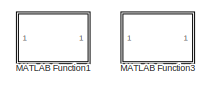
[diagram: root canvas - part 1/5, top center region]
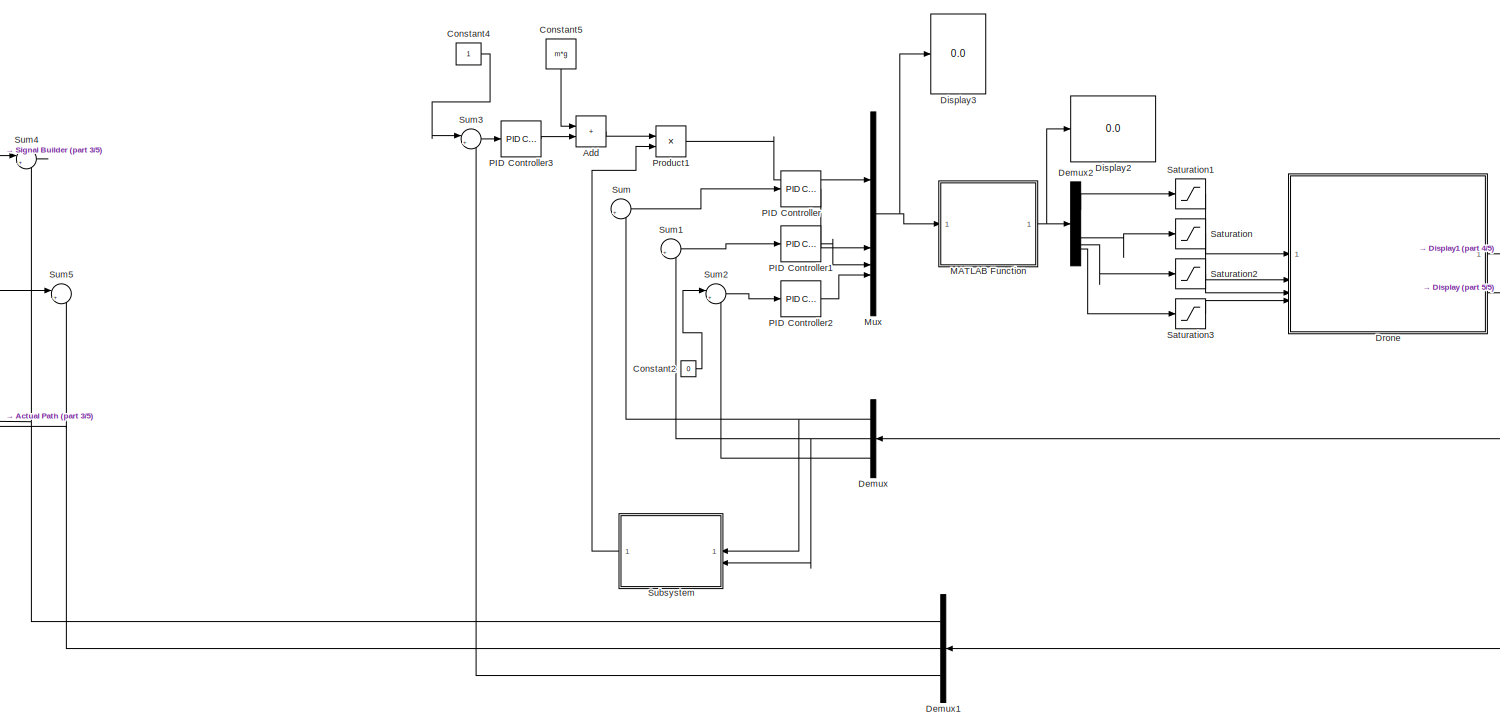
[diagram: root canvas - part 2/5, center side, full height]
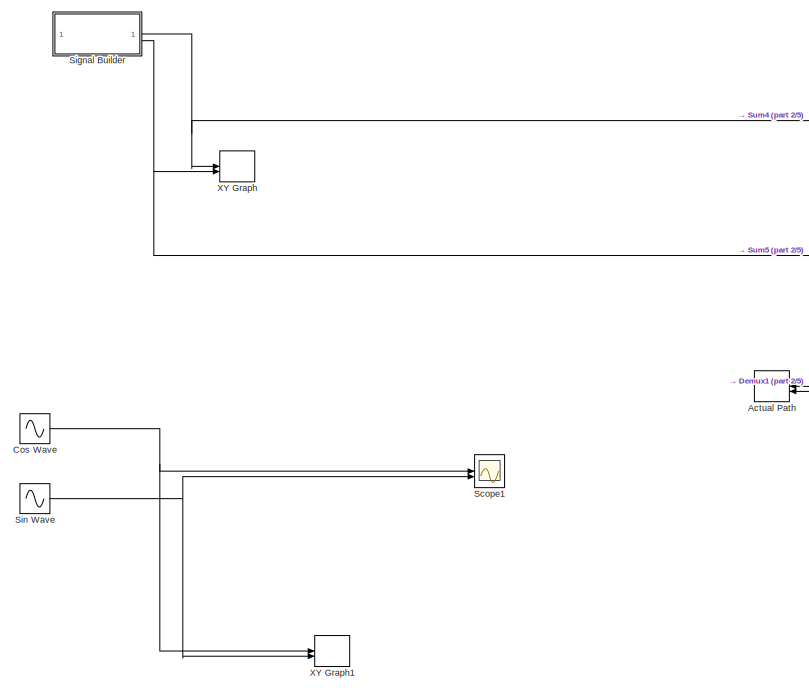
[diagram: root canvas - part 3/5, left side, full height]
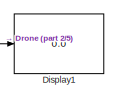
[diagram: root canvas - part 4/5, top right region]
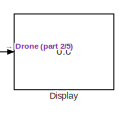
[diagram: root canvas - part 5/5, middle right region]
MODEL slx_03840f11e3d2
KIND model
CONFIG AbsTol = auto
CONFIG EnableMultiTasking = off
CONFIG FixedStep = auto
CONFIG MaxStep = auto
CONFIG MinStep = auto
CONFIG RelTol = 1e-3
CONFIG SampleTimeConstraint = Unconstrained
CONFIG SolverName = VariableStepAuto
CONFIG StartTime = 0.0
CONFIG StopTime = 13
BLOCK [Record] Actual Path
  CompatibilityTag = XY
  FileSettingsInternal = {"entries":[{"content":{"excelSettings":{"content":{},"type":"Streamout.ExcelSettings"}},"type":"Streamout.FileSettingStorage","uuid":"3a33aac3-d567-4dd3-889e-e1026be2fb08"}],"packageUris":["http://schema.mathworks.com/mf0/streamout_blocks/R2020a"],"version":"1.0"}
  Layout = [1 1]
  SignalsInternal = {"entries":[{"content":{"signals":[{"content":{"blockPath":["drone3/Actual Path"],"channel":[],"dimensions":[1],"domain":"drone3/Actual Path","lineColor":"#a2142f","plots":[1],"port":1,"sid":[""],"signalID":9194,"signalName":"Demux1:1"},"type":"RecordBlkView.Signal","uuid":"a4ad2637-f523-4eef-9d2b-64ed427d91d6"},{"content":{"blockPath":["drone3/Actual Path"],"channel":[],"dimensions":[1],"domain":...<+369ch>
  VisualizationBindings = {"xyplotplugin":{"info":[{"series":[{"bindingParametersList":[{"parameter":"X-Axis","signalID":9194,"signalName":"Demux1:1"},{"parameter":"Y-Axis","signalID":9198,"signalName":"Demux1:2"}],"seriesID":45855}],"subplotID":1}]}}
BLOCK [Sum] Add
  IconShape = rectangular
BLOCK [Constant] Constant2
  Value = 0
BLOCK [Constant] Constant4
BLOCK [Constant] Constant5
  NameLocation = left
  Value = m*g
BLOCK [Sin] Cos Wave
  Phase = pi/2
  SampleTime = 0
BLOCK [Demux] Demux
  Outputs = 3
BLOCK [Demux] Demux1
  Outputs = 3
BLOCK [Demux] Demux2
BLOCK [Display] Display
  Decimation = 1
BLOCK [Display] Display1
  Decimation = 1
BLOCK [Display] Display2
  Decimation = 1
BLOCK [Display] Display3
  Decimation = 1
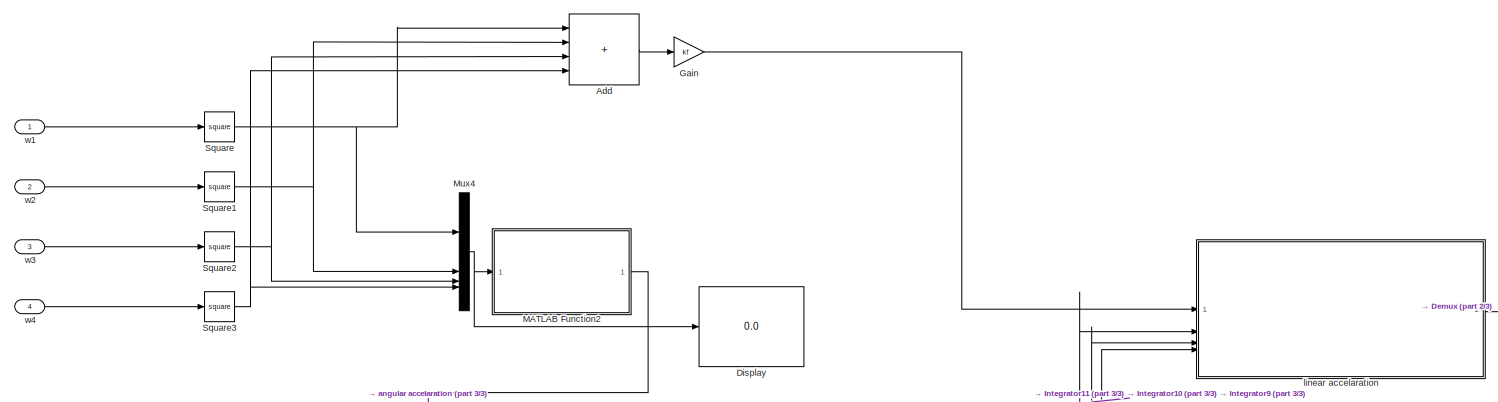
[diagram: Drone - part 1/3, full width, top band]
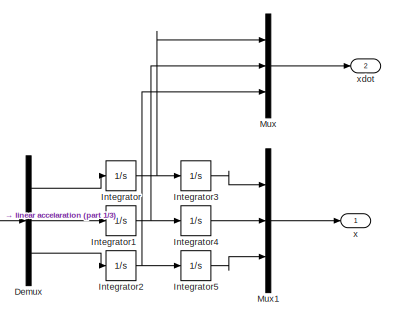
[diagram: Drone - part 2/3, top right region]
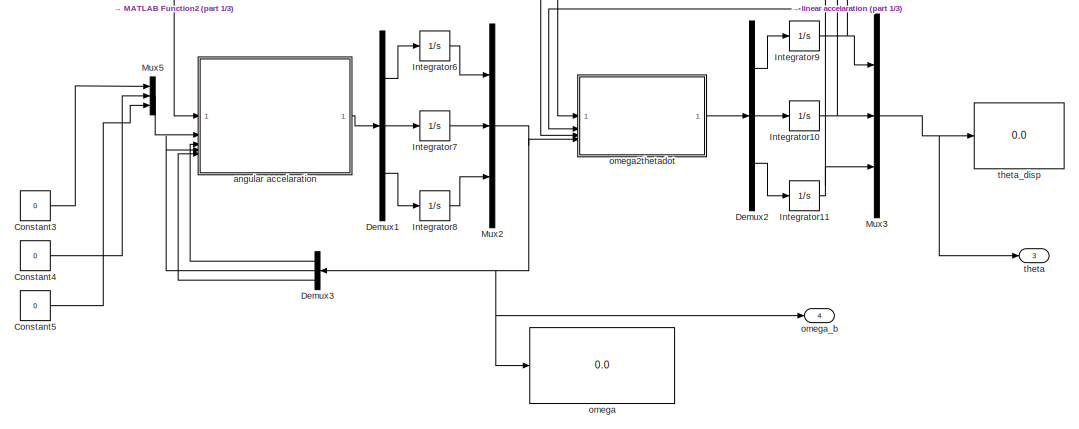
[diagram: Drone - part 3/3, bottom center region]
BLOCK [SubSystem] Drone
BLOCK [Sum] Drone/Add
  IconShape = rectangular
  Inputs = ++++
BLOCK [Constant] Drone/Constant3
  Value = 0
BLOCK [Constant] Drone/Constant4
  Value = 0
BLOCK [Constant] Drone/Constant5
  Value = 0
BLOCK [Demux] Drone/Demux
  Outputs = 3
BLOCK [Demux] Drone/Demux1
  Outputs = 3
BLOCK [Demux] Drone/Demux2
  Outputs = 3
BLOCK [Demux] Drone/Demux3
  Outputs = 3
BLOCK [Display] Drone/Display
  Decimation = 1
BLOCK [Gain] Drone/Gain
  Gain = kf
BLOCK [Integrator] Drone/Integrator
BLOCK [Integrator] Drone/Integrator1
BLOCK [Integrator] Drone/Integrator10
  WrapState = on
BLOCK [Integrator] Drone/Integrator11
  WrapState = on
BLOCK [Integrator] Drone/Integrator2
BLOCK [Integrator] Drone/Integrator3
BLOCK [Integrator] Drone/Integrator4
BLOCK [Integrator] Drone/Integrator5
BLOCK [Integrator] Drone/Integrator6
BLOCK [Integrator] Drone/Integrator7
BLOCK [Integrator] Drone/Integrator8
BLOCK [Integrator] Drone/Integrator9
  WrapState = on
BLOCK [SubSystem] Drone/MATLAB Function2
  ErrorFcn = Stateflow.Translate.translate
  LibrarySourceBlock = simulink/User-Defined\nFunctions/MATLAB Function
  PermitHierarchicalResolution = ExplicitOnly
  SFBlockType = MATLAB Function
  TreatAsAtomicUnit = on
BLOCK [Demux] Drone/MATLAB Function2/ Demux 
  Outputs = 1
BLOCK [S-Function] Drone/MATLAB Function2/ SFunction 
  EnableBusSupport = on
  FunctionName = sf_sfun
  PortCounts = [1 2]
  SFcnIsStateOwnerBlock = off
  SFunctionDeploymentMode = off
  Tag = Stateflow S-Function 4
BLOCK [Terminator] Drone/MATLAB Function2/ Terminator 
BLOCK [Outport] Drone/MATLAB Function2/tau
BLOCK [Inport] Drone/MATLAB Function2/wsquare
BLOCK [Mux] Drone/Mux
  DisplayOption = bar
  Inputs = 3
BLOCK [Mux] Drone/Mux1
  DisplayOption = bar
  Inputs = 3
BLOCK [Mux] Drone/Mux2
  DisplayOption = bar
  Inputs = 3
BLOCK [Mux] Drone/Mux3
  DisplayOption = bar
  Inputs = 3
BLOCK [Mux] Drone/Mux4
  DisplayOption = bar
BLOCK [Mux] Drone/Mux5
  DisplayOption = bar
  Inputs = 3
BLOCK [Math] Drone/Square
  Operator = square
BLOCK [Math] Drone/Square1
  Operator = square
BLOCK [Math] Drone/Square2
  Operator = square
BLOCK [Math] Drone/Square3
  Operator = square
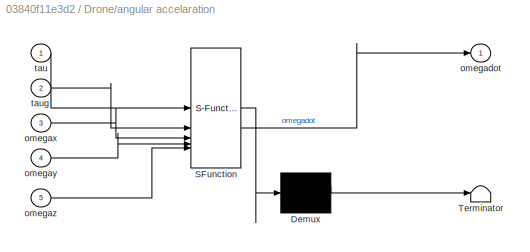
BLOCK [SubSystem] Drone/angular accelaration
  ErrorFcn = Stateflow.Translate.translate
  LibrarySourceBlock = simulink/User-Defined\nFunctions/MATLAB Function
  PermitHierarchicalResolution = ExplicitOnly
  SFBlockType = MATLAB Function
  TreatAsAtomicUnit = on
BLOCK [Demux] Drone/angular accelaration/ Demux 
  Outputs = 1
BLOCK [S-Function] Drone/angular accelaration/ SFunction 
  EnableBusSupport = on
  FunctionName = sf_sfun
  PortCounts = [5 2]
  SFcnIsStateOwnerBlock = off
  SFunctionDeploymentMode = off
  Tag = Stateflow S-Function 1
BLOCK [Terminator] Drone/angular accelaration/ Terminator 
BLOCK [Outport] Drone/angular accelaration/omegadot
BLOCK [Inport] Drone/angular accelaration/omegax
  Port = 3
BLOCK [Inport] Drone/angular accelaration/omegay
  Port = 4
BLOCK [Inport] Drone/angular accelaration/omegaz
  Port = 5
BLOCK [Inport] Drone/angular accelaration/tau
BLOCK [Inport] Drone/angular accelaration/taug
  Port = 2
BLOCK [SubSystem] Drone/linear accelaration
  ErrorFcn = Stateflow.Translate.translate
  LibrarySourceBlock = simulink/User-Defined\nFunctions/MATLAB Function
  PermitHierarchicalResolution = ExplicitOnly
  SFBlockType = MATLAB Function
  TreatAsAtomicUnit = on
BLOCK [Demux] Drone/linear accelaration/ Demux 
  Outputs = 1
BLOCK [S-Function] Drone/linear accelaration/ SFunction 
  EnableBusSupport = on
  FunctionName = sf_sfun
  PortCounts = [4 2]
  SFcnIsStateOwnerBlock = off
  SFunctionDeploymentMode = off
  Tag = Stateflow S-Function 2
BLOCK [Terminator] Drone/linear accelaration/ Terminator 
BLOCK [Inport] Drone/linear accelaration/T
BLOCK [Inport] Drone/linear accelaration/phi
  Port = 4
BLOCK [Inport] Drone/linear accelaration/psi
  Port = 2
BLOCK [Inport] Drone/linear accelaration/theta
  Port = 3
BLOCK [Outport] Drone/linear accelaration/xddot
BLOCK [Display] Drone/omega
  Decimation = 1
BLOCK [SubSystem] Drone/omega2thetadot
  ErrorFcn = Stateflow.Translate.translate
  LibrarySourceBlock = simulink/User-Defined\nFunctions/MATLAB Function
  PermitHierarchicalResolution = ExplicitOnly
  SFBlockType = MATLAB Function
  TreatAsAtomicUnit = on
BLOCK [Demux] Drone/omega2thetadot/ Demux 
  Outputs = 1
BLOCK [S-Function] Drone/omega2thetadot/ SFunction 
  EnableBusSupport = on
  FunctionName = sf_sfun
  PortCounts = [4 2]
  SFcnIsStateOwnerBlock = off
  SFunctionDeploymentMode = off
  Tag = Stateflow S-Function 3
BLOCK [Terminator] Drone/omega2thetadot/ Terminator 
BLOCK [Inport] Drone/omega2thetadot/omega
  Port = 4
BLOCK [Inport] Drone/omega2thetadot/phi
BLOCK [Inport] Drone/omega2thetadot/psi
  Port = 3
BLOCK [Inport] Drone/omega2thetadot/theta
  Port = 2
BLOCK [Outport] Drone/omega2thetadot/thetadot
BLOCK [Outport] Drone/omega_b
  Port = 4
BLOCK [Outport] Drone/theta
  Port = 3
BLOCK [Display] Drone/theta_disp
  Decimation = 1
BLOCK [Inport] Drone/w1
BLOCK [Inport] Drone/w2
  Port = 2
BLOCK [Inport] Drone/w3
  Port = 3
BLOCK [Inport] Drone/w4
  Port = 4
BLOCK [Outport] Drone/x
BLOCK [Outport] Drone/xdot
  Port = 2
BLOCK [SubSystem] MATLAB Function
  ErrorFcn = Stateflow.Translate.translate
  LibrarySourceBlock = simulink/User-Defined\nFunctions/MATLAB Function
  PermitHierarchicalResolution = ExplicitOnly
  SFBlockType = MATLAB Function
  TreatAsAtomicUnit = on
BLOCK [Demux] MATLAB Function/ Demux 
  Outputs = 1
BLOCK [S-Function] MATLAB Function/ SFunction 
  EnableBusSupport = on
  FunctionName = sf_sfun
  PortCounts = [1 2]
  SFcnIsStateOwnerBlock = off
  SFunctionDeploymentMode = off
  Tag = Stateflow S-Function 5
BLOCK [Terminator] MATLAB Function/ Terminator 
BLOCK [Inport] MATLAB Function/tinp
BLOCK [Outport] MATLAB Function/vel
BLOCK [SubSystem] MATLAB Function1
  ErrorFcn = Stateflow.Translate.translate
  LibrarySourceBlock = simulink/User-Defined\nFunctions/MATLAB Function
  PermitHierarchicalResolution = ExplicitOnly
  SFBlockType = MATLAB Function
  TreatAsAtomicUnit = on
BLOCK [Demux] MATLAB Function1/ Demux 
  Outputs = 1
BLOCK [S-Function] MATLAB Function1/ SFunction 
  EnableBusSupport = on
  FunctionName = sf_sfun
  PortCounts = [3 2]
  SFcnIsStateOwnerBlock = off
  SFunctionDeploymentMode = off
  Tag = Stateflow S-Function 6
BLOCK [Terminator] MATLAB Function1/ Terminator 
BLOCK [Outport] MATLAB Function1/vyerr
BLOCK [Inport] MATLAB Function1/xerr
BLOCK [Inport] MATLAB Function1/yaw
  Port = 3
BLOCK [Inport] MATLAB Function1/yerr
  Port = 2
BLOCK [SubSystem] MATLAB Function3
  ErrorFcn = Stateflow.Translate.translate
  LibrarySourceBlock = simulink/User-Defined\nFunctions/MATLAB Function
  PermitHierarchicalResolution = ExplicitOnly
  SFBlockType = MATLAB Function
  TreatAsAtomicUnit = on
BLOCK [Demux] MATLAB Function3/ Demux 
  Outputs = 1
BLOCK [S-Function] MATLAB Function3/ SFunction 
  EnableBusSupport = on
  FunctionName = sf_sfun
  PortCounts = [3 2]
  SFcnIsStateOwnerBlock = off
  SFunctionDeploymentMode = off
  Tag = Stateflow S-Function 8
BLOCK [Terminator] MATLAB Function3/ Terminator 
BLOCK [Outport] MATLAB Function3/vxerr
BLOCK [Inport] MATLAB Function3/xerr
BLOCK [Inport] MATLAB Function3/yaw
  Port = 3
BLOCK [Inport] MATLAB Function3/yerr
  Port = 2
BLOCK [Mux] Mux
  DisplayOption = bar
BLOCK [Reference] PID Controller  REF=slpidlib/PID Controller
  LibrarySourceBlock = simulink/Continuous/PID Controller
  SourceBlock = slpidlib/PID Controller
  SourceType = PID 1dof
BLOCK [Reference] PID Controller1  REF=slpidlib/PID Controller
  LibrarySourceBlock = simulink/Continuous/PID Controller
  SourceBlock = slpidlib/PID Controller
  SourceType = PID 1dof
BLOCK [Reference] PID Controller2  REF=slpidlib/PID Controller
  LibrarySourceBlock = simulink/Continuous/PID Controller
  SourceBlock = slpidlib/PID Controller
  SourceType = PID 1dof
BLOCK [Reference] PID Controller3  REF=slpidlib/PID Controller
  LibrarySourceBlock = simulink/Continuous/PID Controller
  SourceBlock = slpidlib/PID Controller
  SourceType = PID 1dof
BLOCK [Product] Product1
BLOCK [Saturate] Saturation
  LowerLimit = 0
  UpperLimit = inf
BLOCK [Saturate] Saturation1
  LowerLimit = 0
  UpperLimit = inf
BLOCK [Saturate] Saturation2
  LowerLimit = 0
  UpperLimit = inf
BLOCK [Saturate] Saturation3
  LowerLimit = 0
  UpperLimit = inf
BLOCK [Scope] Scope1
  Floating = off
  NumInputPorts = 2
  ScopeSpecificationString = Simulink.scopes.TimeScopeBlockCfg('CurrentConfiguration', extmgr.ConfigurationSet(extmgr.Configuration('Core','General UI',true),extmgr.Configuration('Core','Source UI',true),extmgr.Configuration('Sources','WiredSimulink',true,'DataLoggingVariableName','ScopeData1'),extmgr.Configuration('Visuals','Time Domain',true,'SerializedDisplays',{struct('MinYLimReal','-1.08738','MaxYLimReal','1.23193','YLab...<+1378ch>
BLOCK [SubSystem] Signal Builder
  ClipboardFcn = sigbuilder_block('clipboard');
  CloseFcn = sigbuilder_block('close');
  ContinueFcn = sigbuilder_block('continue');
  CopyFcn = sigbuilder_block('copy');
  DeleteFcn = sigbuilder_block('delete');
  LoadFcn = sigbuilder_block('load');
  MaskHideContents = on
  ModelCloseFcn = sigbuilder_block('modelClose');
  NameChangeFcn = sigbuilder_block('namechange');
  OpenFcn = sigbuilder_block('open',[437.6 199.2 625.4 400 ]);
  PauseFcn = sigbuilder_block('pause');
  PreSaveFcn = sigbuilder_block('preSave');
  StartFcn = sigbuilder_block('start');
  StopFcn = sigbuilder_block('stop');
  Tag = STV Subsys
BLOCK [Demux] Signal Builder/Demux
  DisplayOption = none
  Outputs = 2
  Tag = STV Demux
BLOCK [FromWorkspace] Signal Builder/FromWs
  Tag = STV FromWs
  VariableName = tuvar
BLOCK [Outport] Signal Builder/Signal 1
  Port = 2
  Tag = STV Outport
BLOCK [Outport] Signal Builder/Signal 2
  Tag = STV Outport
BLOCK [Sin] Sin Wave
  SampleTime = 0
BLOCK [SubSystem] Subsystem
BLOCK [Constant] Subsystem/Constant3
BLOCK [Trigonometry] Subsystem/Cos
  Operator = cos
BLOCK [Trigonometry] Subsystem/Cos1
  Operator = cos
BLOCK [Product] Subsystem/Divide
  Inputs = */
BLOCK [Product] Subsystem/Product
BLOCK [Outport] Subsystem/denom
BLOCK [Inport] Subsystem/phi
  Port = 2
BLOCK [Inport] Subsystem/theta
BLOCK [Sum] Sum
  Inputs = |+-
BLOCK [Sum] Sum1
  Inputs = |+-
BLOCK [Sum] Sum2
  Inputs = |+-
BLOCK [Sum] Sum3
  Inputs = |+-
BLOCK [Sum] Sum4
  Inputs = |+-
BLOCK [Sum] Sum5
  Inputs = |+-
BLOCK [Record] XY Graph
  CompatibilityTag = XY
  FileSettingsInternal = {"entries":[{"content":{"excelSettings":{"content":{},"type":"Streamout.ExcelSettings"}},"type":"Streamout.FileSettingStorage","uuid":"c0bb3f9d-c5a6-47e9-93ce-efe6058cfaaa"}],"packageUris":["http://schema.mathworks.com/mf0/streamout_blocks/R2020a"],"version":"1.0"}
  Layout = [1 1]
  SignalsInternal = {"entries":[{"content":{"signals":[{"content":{"blockPath":["drone3/XY Graph"],"channel":[],"dimensions":[1],"domain":"drone3/XY Graph","lineColor":"#a2142f","plots":[1],"port":1,"sid":[""],"signalID":9210,"signalName":"Signal Builder:1"},"type":"RecordBlkView.Signal","uuid":"80178128-24fe-4f93-94af-97e6e0a7a839"},{"content":{"blockPath":["drone3/XY Graph"],"channel":[],"dimensions":[1],"domain":"...<+373ch>
  VisualizationBindings = {"xyplotplugin":{"info":[{"series":[{"bindingParametersList":[{"parameter":"X-Axis","signalID":9210,"signalName":"Signal Builder:1"},{"parameter":"Y-Axis","signalID":9214,"signalName":"Signal Builder:2"}],"seriesID":60093}],"subplotID":1}]}}
BLOCK [Record] XY Graph1
  CompatibilityTag = XY
  FileSettingsInternal = {"entries":[{"content":{"excelSettings":{"content":{},"type":"Streamout.ExcelSettings"}},"type":"Streamout.FileSettingStorage","uuid":"447e0cfd-d0d5-4959-8618-14f7484ef3db"}],"packageUris":["http://schema.mathworks.com/mf0/streamout_blocks/R2020a"],"version":"1.0"}
  Layout = [1 1]
  SignalsInternal = {"entries":[{"content":{"signals":[{"content":{"blockPath":["drone3/XY Graph1"],"channel":[],"dimensions":[1],"domain":"drone3/XY Graph1","lineColor":"#a2142f","plots":[1],"port":1,"sid":[""],"signalID":9202,"signalName":"Cos Wave"},"type":"RecordBlkView.Signal","uuid":"6c321900-397f-4e68-8358-4f98313cd395"},{"content":{"blockPath":["drone3/XY Graph1"],"channel":[],"dimensions":[1],"domain":"drone...<+361ch>
  VisualizationBindings = {"xyplotplugin":{"info":[{"series":[{"bindingParametersList":[{"parameter":"X-Axis","signalID":9202,"signalName":"Cos Wave"},{"parameter":"Y-Axis","signalID":9206,"signalName":"Sin Wave"}],"seriesID":29405}],"subplotID":1}]}}
LINE Add:1 -> Product1:1
LINE Constant2:1 -> Sum2:1
LINE Constant4:1 -> Sum3:1
LINE Constant5:1 -> Add:1
NET Cos Wave:1 -> Scope1:1, XY Graph1:1
NET Demux1:1 -> Actual Path:1, Sum4:2
NET Demux1:2 -> Actual Path:2, Sum5:2
LINE Demux1:3 -> Sum3:2
LINE Demux2:1 -> Saturation1:1
LINE Demux2:2 -> Saturation:1
LINE Demux2:3 -> Saturation2:1
LINE Demux2:4 -> Saturation3:1
NET Demux:1 -> Subsystem:1, Sum:2
NET Demux:2 -> Subsystem:2, Sum1:2
LINE Demux:3 -> Sum2:2
LINE Drone/Add:1 -> Drone/Gain:1
LINE Drone/Constant3:1 -> Drone/Mux5:1
LINE Drone/Constant4:1 -> Drone/Mux5:2
LINE Drone/Constant5:1 -> Drone/Mux5:3
LINE Drone/Demux1:1 -> Drone/Integrator6:1
LINE Drone/Demux1:2 -> Drone/Integrator7:1
LINE Drone/Demux1:3 -> Drone/Integrator8:1
LINE Drone/Demux2:1 -> Drone/Integrator9:1
LINE Drone/Demux2:2 -> Drone/Integrator10:1
LINE Drone/Demux2:3 -> Drone/Integrator11:1
LINE Drone/Demux3:1 -> Drone/angular accelaration:3
LINE Drone/Demux3:2 -> Drone/angular accelaration:4
LINE Drone/Demux3:3 -> Drone/angular accelaration:5
LINE Drone/Demux:1 -> Drone/Integrator:1
LINE Drone/Demux:2 -> Drone/Integrator1:1
LINE Drone/Demux:3 -> Drone/Integrator2:1
LINE Drone/Gain:1 -> Drone/linear accelaration:1
NET Drone/Integrator10:1 -> Drone/Mux3:2, Drone/linear accelaration:3, Drone/omega2thetadot:2
NET Drone/Integrator11:1 -> Drone/Mux3:3, Drone/linear accelaration:2, Drone/omega2thetadot:3
NET Drone/Integrator1:1 -> Drone/Integrator4:1, Drone/Mux:2
NET Drone/Integrator2:1 -> Drone/Integrator5:1, Drone/Mux:3
LINE Drone/Integrator3:1 -> Drone/Mux1:1
LINE Drone/Integrator4:1 -> Drone/Mux1:2
LINE Drone/Integrator5:1 -> Drone/Mux1:3
LINE Drone/Integrator6:1 -> Drone/Mux2:1
LINE Drone/Integrator7:1 -> Drone/Mux2:2
LINE Drone/Integrator8:1 -> Drone/Mux2:3
NET Drone/Integrator9:1 -> Drone/Mux3:1, Drone/linear accelaration:4, Drone/omega2thetadot:1
NET Drone/Integrator:1 -> Drone/Integrator3:1, Drone/Mux:1
LINE Drone/MATLAB Function2:1 -> Drone/angular accelaration:1
LINE Drone/Mux1:1 -> Drone/x:1
NET Drone/Mux2:1 -> Drone/Demux3:1, Drone/omega2thetadot:4, Drone/omega:1, Drone/omega_b:1
NET Drone/Mux3:1 -> Drone/theta:1, Drone/theta_disp:1
NET Drone/Mux4:1 -> Drone/Display:1, Drone/MATLAB Function2:1
LINE Drone/Mux5:1 -> Drone/angular accelaration:2
LINE Drone/Mux:1 -> Drone/xdot:1
NET Drone/Square1:1 -> Drone/Add:2, Drone/Mux4:2
NET Drone/Square2:1 -> Drone/Add:3, Drone/Mux4:3
NET Drone/Square3:1 -> Drone/Add:4, Drone/Mux4:4
NET Drone/Square:1 -> Drone/Add:1, Drone/Mux4:1
LINE Drone/angular accelaration:1 -> Drone/Demux1:1
LINE Drone/linear accelaration:1 -> Drone/Demux:1
LINE Drone/omega2thetadot:1 -> Drone/Demux2:1
LINE Drone/w1:1 -> Drone/Square:1
LINE Drone/w2:1 -> Drone/Square1:1
LINE Drone/w3:1 -> Drone/Square2:1
LINE Drone/w4:1 -> Drone/Square3:1
NET Drone:1 -> Demux1:1, Display1:1
NET Drone:3 -> Demux:1, Display:1
NET MATLAB Function:1 -> Demux2:1, Display2:1
NET Mux:1 -> Display3:1, MATLAB Function:1
LINE PID Controller1:1 -> Mux:3
LINE PID Controller2:1 -> Mux:4
LINE PID Controller3:1 -> Add:2
LINE PID Controller:1 -> Mux:2
LINE Product1:1 -> Mux:1
LINE Saturation1:1 -> Drone:1
LINE Saturation2:1 -> Drone:3
LINE Saturation3:1 -> Drone:4
LINE Saturation:1 -> Drone:2
NET Signal Builder:1 -> Sum4:1, XY Graph:1
NET Signal Builder:2 -> Sum5:1, XY Graph:2
NET Sin Wave:1 -> Scope1:2, XY Graph1:2
LINE Subsystem/Constant3:1 -> Subsystem/Divide:1
LINE Subsystem/Cos1:1 -> Subsystem/Product:2
LINE Subsystem/Cos:1 -> Subsystem/Product:1
LINE Subsystem/Divide:1 -> Subsystem/denom:1
LINE Subsystem/Product:1 -> Subsystem/Divide:2
LINE Subsystem/phi:1 -> Subsystem/Cos1:1
LINE Subsystem/theta:1 -> Subsystem/Cos:1
LINE Subsystem:1 -> Product1:2
LINE Sum1:1 -> PID Controller1:1
LINE Sum2:1 -> PID Controller2:1
LINE Sum3:1 -> PID Controller3:1
LINE Sum:1 -> PID Controller:1
note: NET lines group one-source signal fan-out (src -> all destinations, sorted); 1:1 wires keep LINE
CHART Drone/angular accelaration states=1 transitions=1
  STATE_LABEL 'eML_blk_kernel()'
  STATE_LABEL 'SCRIPT:\nfunction omegadot = fcn(tau,taug,omegax,omegay,omegaz)\n\nixx = 2.3951*10^-5;\niyy = 2.3951*10^-5;\nizz = 3.2347*10^-5;\n\n\nomega_temp = zeros(3,1);\nomega_temp(1,1) = omegax;\nomega_temp(2,1) = omegay;\nomega_temp(3,1) = omegaz;\n\nInertia = [ixx 0 0 ; 0 iyy 0 ; 0 0 izz];\n\ndiff = tau - taug;\ncross_product = cross(omega_temp,Inertia*omega_temp);\nomegadot = inv(Inertia)*(diff - cross_product);\n'
CHART Drone/linear accelaration states=1 transitions=1
  STATE_LABEL 'eML_blk_kernel()'
  STATE_LABEL 'SCRIPT:\nfunction xddot = fcn(T,psi,theta,phi)\n\nxddot = [0.0 ; 0.0 ; 0.0] ;\nm = 34*10^-3 ;\ng = 9.8 ;\nF_x_g = 0.0;\nF_y_g = 0.0;\n\nxddot(1,1) = (T/m)*(sin(psi)*sin(phi) + cos(psi)*cos(phi)*sin(theta)) - (F_x_g/m);\nxddot(2,1) = (T/m)*(-cos(psi)*sin(phi) + sin(psi)*cos(phi)*sin(theta)) - (F_y_g/m);\nxddot(3,1) = (T/m)*(cos(psi)*cos(theta)) - g;\n\n\n\n\n'
CHART Drone/omega2thetadot states=1 transitions=1
  STATE_LABEL 'eML_blk_kernel()'
  STATE_LABEL 'SCRIPT:\nfunction thetadot = fcn(phi,theta,psi,omega)\nR = [1 0 -sin(theta) ; 0 cos(phi) cos(theta)*sin(phi) ; 0 -sin(phi) cos(theta)*cos(phi)];\nthetadot = inv(R)*omega;\n'
CHART Drone/MATLAB Function2 states=1 transitions=1
  STATE_LABEL 'eML_blk_kernel()'
  STATE_LABEL 'SCRIPT:\nfunction tau = fcn(wsquare)\nkf = 0.005022;\nkm = 1.858*10^-5;\nL = 0.032;\nmma = [ 0 kf*L 0 -kf*L ; -kf*L 0 kf*L  0 ; km -km km -km ];\ntau = mma*wsquare;'
CHART MATLAB Function states=1 transitions=1
  STATE_LABEL 'eML_blk_kernel()'
  STATE_LABEL 'SCRIPT:\nfunction vel = fcn(tinp)\nkf= 0.005022;\nkm= 1.858*10^-5;\nL = 0.032;\nR = [ kf kf kf kf ; 0 kf*L 0 -kf*L ; -kf*L 0 kf*L 0 ; km -km km -km];\ninv_R = inv(R);\nvel_square = inv_R*tinp;\n%vel_square = max(vel_square,0.0);\nvel_square = max(vel_square,0.000000001);\nvel = sqrt(vel_square);\n'
CHART MATLAB Function1 states=1 transitions=1
  STATE_LABEL 'eML_blk_kernel()'
  STATE_LABEL 'SCRIPT:\nfunction vyerr = fcn(xerr,yerr,yaw)\nvyerr = yerr*cos(yaw) - xerr*sin(yaw);\n\n\n'
CHART MATLAB Function3 states=1 transitions=1
  STATE_LABEL 'eML_blk_kernel()'
  STATE_LABEL 'SCRIPT:\nfunction vxerr = fcn(xerr,yerr,yaw)\nvxerr = xerr*cos(yaw) + yerr*sin(yaw);\n\n\n'
CHART  states=0 transitions=0
CHART  states=0 transitions=0
CHART  states=0 transitions=0
CHART  states=0 transitions=0
CHART  states=0 transitions=0
CHART  states=0 transitions=0
CHART  states=0 transitions=0
